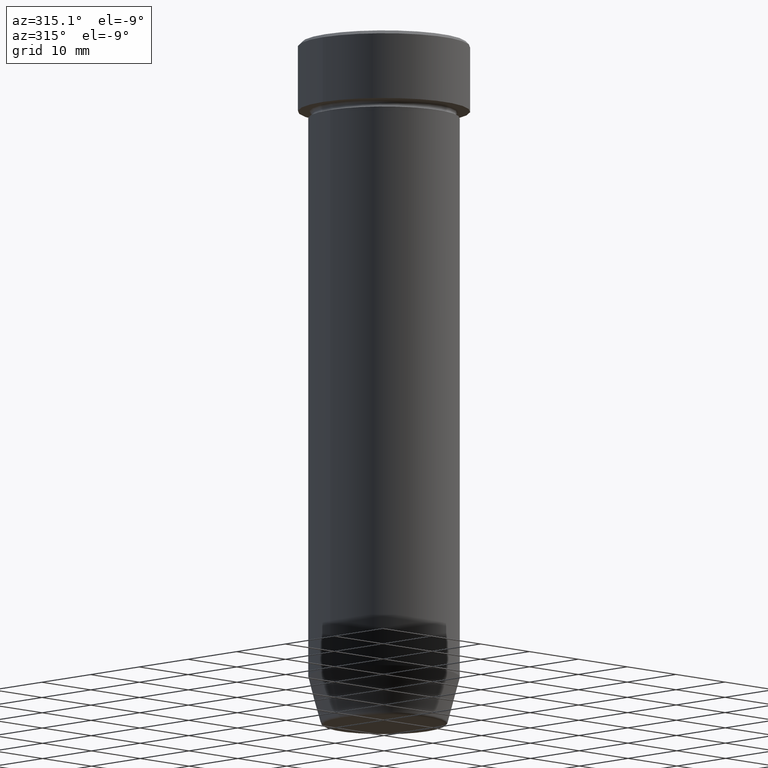
[diagram: clean part render]
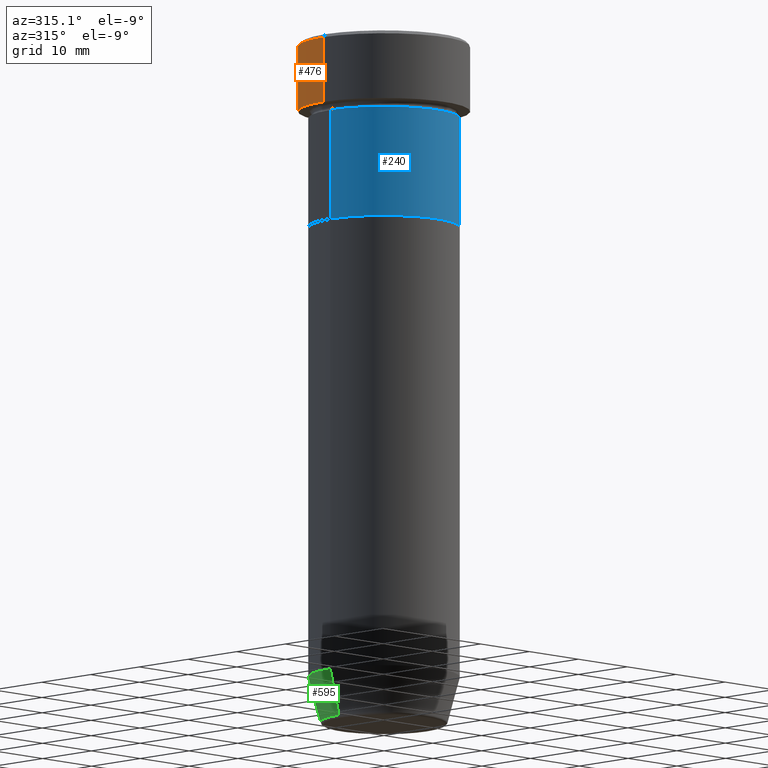
[diagram: same view with three faces highlighted in distinct colors, each labeled with its STEP entity id]
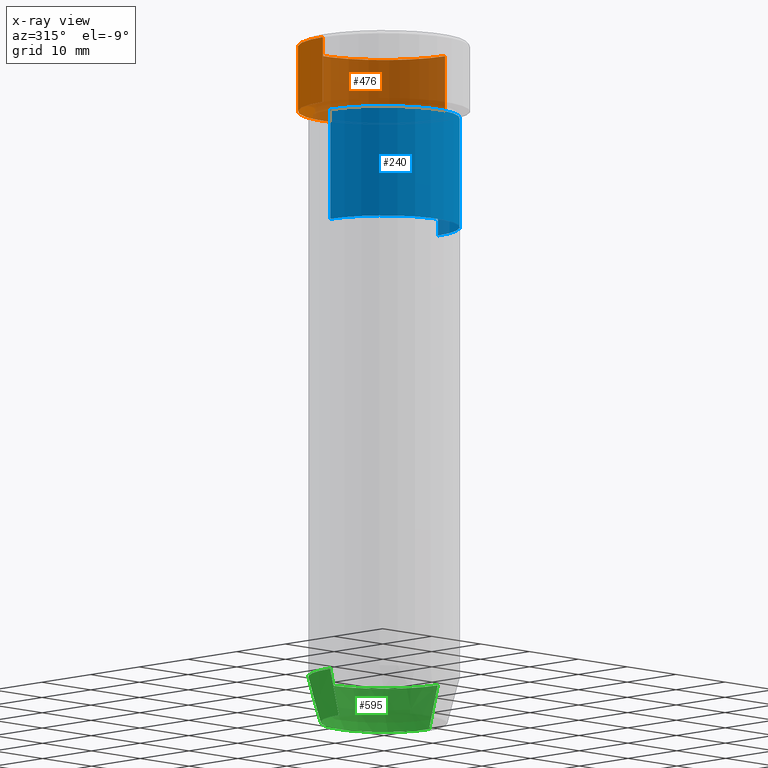
[diagram: x-ray of the same camera — body ghosted, the three highlighted faces saturated]
A machine part, auxiliary view with three faces highlighted in distinct colors.
The next image is the same camera in x-ray (body ghosted, the three faces saturated) — at least one of them is partly hidden behind the body in this view.
Their STEP definitions:

[orange] entity #476 — the highlighted cylindrical surface (partial cylindrical patch) has radius 12.5 mm, axis along (-0, -0, 1).
#1 = FACE_OUTER_BOUND ( 'NONE', #457, .T. ) ;
#3 = DIRECTION ( 'NONE',  ( -0.000000000000000000, -0.000000000000000000, 1.000000000000000000 ) ) ;
#11 = DIRECTION ( 'NONE',  ( 1.000000000000000000, 0.000000000000000000, 0.000000000000000000 ) ) ;
#21 = DIRECTION ( 'NONE',  ( 1.000000000000000000, 0.000000000000000000, 0.000000000000000000 ) ) ;
#60 = ORIENTED_EDGE ( 'NONE', *, *, #179, .T. ) ;
#80 = VERTEX_POINT ( 'NONE', #122 ) ;
#86 = ORIENTED_EDGE ( 'NONE', *, *, #362, .T. ) ;
#103 = AXIS2_PLACEMENT_3D ( 'NONE', #160, #163, #529 ) ;
#111 = EDGE_CURVE ( 'NONE', #80, #255, #145, .T. ) ;
#122 = CARTESIAN_POINT ( 'NONE',  ( 12.50000000000000000, 0.000000000000000000, -10.00000000000000000 ) ) ;
#129 = LINE ( 'NONE', #412, #371 ) ;
#145 = CIRCLE ( 'NONE', #103, 12.50000000000000000 ) ;
#155 = ORIENTED_EDGE ( 'NONE', *, *, #111, .T. ) ;
#160 = CARTESIAN_POINT ( 'NONE',  ( 0.000000000000000000, 0.000000000000000000, -10.00000000000000000 ) ) ;
#163 = DIRECTION ( 'NONE',  ( -0.000000000000000000, -0.000000000000000000, 1.000000000000000000 ) ) ;
#179 = EDGE_CURVE ( 'NONE', #211, #408, #596, .T. ) ;
#211 = VERTEX_POINT ( 'NONE', #443 ) ;
#224 = EDGE_CURVE ( 'NONE', #80, #408, #358, .T. ) ;
#255 = VERTEX_POINT ( 'NONE', #317 ) ;
#290 = AXIS2_PLACEMENT_3D ( 'NONE', #488, #440, #21 ) ;
#294 = CARTESIAN_POINT ( 'NONE',  ( 0.000000000000000000, 0.000000000000000000, 0.000000000000000000 ) ) ;
#296 = CARTESIAN_POINT ( 'NONE',  ( 12.50000000000000000, 0.000000000000000000, -0.4999999999999988343 ) ) ;
#317 = CARTESIAN_POINT ( 'NONE',  ( -12.50000000000000000, 1.530808498934191521E-15, -10.00000000000000000 ) ) ;
#358 = LINE ( 'NONE', #399, #458 ) ;
#362 = EDGE_CURVE ( 'NONE', #255, #211, #129, .T. ) ;
#371 = VECTOR ( 'NONE', #597, 1000.000000000000000 ) ;
#390 = AXIS2_PLACEMENT_3D ( 'NONE', #294, #3, #11 ) ;
#399 = CARTESIAN_POINT ( 'NONE',  ( 12.50000000000000000, 0.000000000000000000, 0.000000000000000000 ) ) ;
#408 = VERTEX_POINT ( 'NONE', #296 ) ;
#412 = CARTESIAN_POINT ( 'NONE',  ( -12.50000000000000000, 1.530808498934191521E-15, 0.000000000000000000 ) ) ;
#427 = CYLINDRICAL_SURFACE ( 'NONE', #390, 12.50000000000000000 ) ;
#440 = DIRECTION ( 'NONE',  ( 0.000000000000000000, 0.000000000000000000, -1.000000000000000000 ) ) ;
#443 = CARTESIAN_POINT ( 'NONE',  ( -12.50000000000000000, 1.530808498934191521E-15, -0.4999999999999988343 ) ) ;
#457 = EDGE_LOOP ( 'NONE', ( #155, #86, #60, #470 ) ) ;
#458 = VECTOR ( 'NONE', #577, 1000.000000000000000 ) ;
#470 = ORIENTED_EDGE ( 'NONE', *, *, #224, .F. ) ;
#476 = ADVANCED_FACE ( 'NONE', ( #1 ), #427, .T. ) ;
#488 = CARTESIAN_POINT ( 'NONE',  ( 0.000000000000000000, 0.000000000000000000, -0.4999999999999988343 ) ) ;
#529 = DIRECTION ( 'NONE',  ( 1.000000000000000000, 0.000000000000000000, 0.000000000000000000 ) ) ;
#577 = DIRECTION ( 'NONE',  ( -0.000000000000000000, -0.000000000000000000, 1.000000000000000000 ) ) ;
#596 = CIRCLE ( 'NONE', #290, 12.50000000000000000 ) ;
#597 = DIRECTION ( 'NONE',  ( -0.000000000000000000, -0.000000000000000000, 1.000000000000000000 ) ) ;

[blue] entity #240 — the highlighted cylindrical surface (partial cylindrical patch) has radius 11 mm, axis along (-0, -0, 1).
#18 = AXIS2_PLACEMENT_3D ( 'NONE', #364, #452, #372 ) ;
#42 = VERTEX_POINT ( 'NONE', #242 ) ;
#48 = CARTESIAN_POINT ( 'NONE',  ( 11.00000000000000000, 0.000000000000000000, -27.00000000000000000 ) ) ;
#49 = ORIENTED_EDGE ( 'NONE', *, *, #544, .T. ) ;
#77 = AXIS2_PLACEMENT_3D ( 'NONE', #277, #507, #409 ) ;
#93 = CIRCLE ( 'NONE', #509, 11.00000000000000000 ) ;
#131 = CARTESIAN_POINT ( 'NONE',  ( -11.00000000000000000, 1.347111479062088405E-15, 0.000000000000000000 ) ) ;
#143 = VECTOR ( 'NONE', #553, 1000.000000000000000 ) ;
#149 = CARTESIAN_POINT ( 'NONE',  ( 11.00000000000000000, 0.000000000000000000, -11.00000000000000000 ) ) ;
#180 = LINE ( 'NONE', #131, #536 ) ;
#190 = CARTESIAN_POINT ( 'NONE',  ( 11.00000000000000000, 0.000000000000000000, 0.000000000000000000 ) ) ;
#240 = ADVANCED_FACE ( 'NONE', ( #589 ), #273, .T. ) ;
#242 = CARTESIAN_POINT ( 'NONE',  ( -11.00000000000000000, 1.347111479062088405E-15, -27.00000000000000000 ) ) ;
#254 = LINE ( 'NONE', #190, #143 ) ;
#273 = CYLINDRICAL_SURFACE ( 'NONE', #18, 11.00000000000000000 ) ;
#274 = ORIENTED_EDGE ( 'NONE', *, *, #554, .F. ) ;
#277 = CARTESIAN_POINT ( 'NONE',  ( 0.000000000000000000, 0.000000000000000000, -27.00000000000000000 ) ) ;
#295 = ORIENTED_EDGE ( 'NONE', *, *, #370, .T. ) ;
#303 = DIRECTION ( 'NONE',  ( 1.000000000000000000, 0.000000000000000000, 0.000000000000000000 ) ) ;
#315 = VERTEX_POINT ( 'NONE', #48 ) ;
#321 = DIRECTION ( 'NONE',  ( -0.000000000000000000, -0.000000000000000000, 1.000000000000000000 ) ) ;
#348 = CARTESIAN_POINT ( 'NONE',  ( 0.000000000000000000, 0.000000000000000000, -11.00000000000000000 ) ) ;
#364 = CARTESIAN_POINT ( 'NONE',  ( 0.000000000000000000, 0.000000000000000000, 0.000000000000000000 ) ) ;
#370 = EDGE_CURVE ( 'NONE', #42, #315, #445, .T. ) ;
#372 = DIRECTION ( 'NONE',  ( 1.000000000000000000, 0.000000000000000000, 0.000000000000000000 ) ) ;
#379 = EDGE_CURVE ( 'NONE', #42, #477, #180, .T. ) ;
#388 = CARTESIAN_POINT ( 'NONE',  ( -11.00000000000000000, 1.347111479062088405E-15, -11.00000000000000000 ) ) ;
#393 = DIRECTION ( 'NONE',  ( -0.000000000000000000, -0.000000000000000000, 1.000000000000000000 ) ) ;
#409 = DIRECTION ( 'NONE',  ( 1.000000000000000000, 0.000000000000000000, 0.000000000000000000 ) ) ;
#413 = VERTEX_POINT ( 'NONE', #149 ) ;
#445 = CIRCLE ( 'NONE', #77, 11.00000000000000000 ) ;
#452 = DIRECTION ( 'NONE',  ( -0.000000000000000000, -0.000000000000000000, 1.000000000000000000 ) ) ;
#477 = VERTEX_POINT ( 'NONE', #388 ) ;
#482 = ORIENTED_EDGE ( 'NONE', *, *, #379, .F. ) ;
#507 = DIRECTION ( 'NONE',  ( -0.000000000000000000, -0.000000000000000000, 1.000000000000000000 ) ) ;
#509 = AXIS2_PLACEMENT_3D ( 'NONE', #348, #393, #303 ) ;
#536 = VECTOR ( 'NONE', #321, 1000.000000000000000 ) ;
#544 = EDGE_CURVE ( 'NONE', #315, #413, #254, .T. ) ;
#553 = DIRECTION ( 'NONE',  ( -0.000000000000000000, -0.000000000000000000, 1.000000000000000000 ) ) ;
#554 = EDGE_CURVE ( 'NONE', #477, #413, #93, .T. ) ;
#589 = FACE_OUTER_BOUND ( 'NONE', #599, .T. ) ;
#599 = EDGE_LOOP ( 'NONE', ( #482, #295, #49, #274 ) ) ;

[green] entity #595 — the highlighted conical surface has half-angle 15 deg.
#6 = VECTOR ( 'NONE', #65, 1000.000000000000000 ) ;
#9 = VERTEX_POINT ( 'NONE', #152 ) ;
#47 = VECTOR ( 'NONE', #146, 1000.000000000000000 ) ;
#65 = DIRECTION ( 'NONE',  ( 0.2588190451025217942, 0.000000000000000000, 0.9659258262890679791 ) ) ;
#137 = EDGE_CURVE ( 'NONE', #264, #9, #456, .T. ) ;
#142 = ORIENTED_EDGE ( 'NONE', *, *, #430, .T. ) ;
#146 = DIRECTION ( 'NONE',  ( -0.2588190451025217942, 3.169619151431777884E-17, 0.9659258262890679791 ) ) ;
#152 = CARTESIAN_POINT ( 'NONE',  ( -11.00000000000000000, 1.347111479062088405E-15, -92.99999999999998579 ) ) ;
#167 = CARTESIAN_POINT ( 'NONE',  ( 9.223655072137189492, 0.000000000000000000, -99.62940952255124216 ) ) ;
#170 = CARTESIAN_POINT ( 'NONE',  ( 11.00000000000000000, 0.000000000000000000, -92.99999999999998579 ) ) ;
#171 = CIRCLE ( 'NONE', #512, 9.223655072137189492 ) ;
#174 = FACE_OUTER_BOUND ( 'NONE', #233, .T. ) ;
#178 = ORIENTED_EDGE ( 'NONE', *, *, #540, .F. ) ;
#183 = ORIENTED_EDGE ( 'NONE', *, *, #191, .T. ) ;
#191 = EDGE_CURVE ( 'NONE', #226, #380, #171, .T. ) ;
#202 = CARTESIAN_POINT ( 'NONE',  ( 9.124355652982133691, 0.000000000000000000, -99.99999999999997158 ) ) ;
#208 = DIRECTION ( 'NONE',  ( 1.000000000000000000, 0.000000000000000000, 0.000000000000000000 ) ) ;
#226 = VERTEX_POINT ( 'NONE', #167 ) ;
#230 = DIRECTION ( 'NONE',  ( 1.000000000000000000, 0.000000000000000000, 0.000000000000000000 ) ) ;
#233 = EDGE_LOOP ( 'NONE', ( #183, #142, #355, #178 ) ) ;
#264 = VERTEX_POINT ( 'NONE', #170 ) ;
#334 = LINE ( 'NONE', #511, #47 ) ;
#355 = ORIENTED_EDGE ( 'NONE', *, *, #137, .F. ) ;
#365 = DIRECTION ( 'NONE',  ( -0.000000000000000000, -0.000000000000000000, 1.000000000000000000 ) ) ;
#380 = VERTEX_POINT ( 'NONE', #505 ) ;
#395 = DIRECTION ( 'NONE',  ( -0.000000000000000000, -0.000000000000000000, 1.000000000000000000 ) ) ;
#396 = CARTESIAN_POINT ( 'NONE',  ( 0.000000000000000000, 0.000000000000000000, -99.62940952255124216 ) ) ;
#430 = EDGE_CURVE ( 'NONE', #380, #9, #334, .T. ) ;
#431 = LINE ( 'NONE', #202, #6 ) ;
#456 = CIRCLE ( 'NONE', #487, 11.00000000000000000 ) ;
#464 = CARTESIAN_POINT ( 'NONE',  ( 0.000000000000000000, 0.000000000000000000, -99.99999999999997158 ) ) ;
#486 = CARTESIAN_POINT ( 'NONE',  ( 0.000000000000000000, 0.000000000000000000, -92.99999999999998579 ) ) ;
#487 = AXIS2_PLACEMENT_3D ( 'NONE', #486, #395, #208 ) ;
#505 = CARTESIAN_POINT ( 'NONE',  ( -9.223655072137189492, 1.238341722557647004E-15, -99.62940952255124216 ) ) ;
#511 = CARTESIAN_POINT ( 'NONE',  ( -9.124355652982133691, 1.117411294470662806E-15, -99.99999999999997158 ) ) ;
#512 = AXIS2_PLACEMENT_3D ( 'NONE', #396, #535, #574 ) ;
#535 = DIRECTION ( 'NONE',  ( -0.000000000000000000, -0.000000000000000000, 1.000000000000000000 ) ) ;
#540 = EDGE_CURVE ( 'NONE', #226, #264, #431, .T. ) ;
#556 = CONICAL_SURFACE ( 'NONE', #583, 9.124355652982133691, 0.2617993877991505181 ) ;
#574 = DIRECTION ( 'NONE',  ( -1.000000000000000000, 0.000000000000000000, 0.000000000000000000 ) ) ;
#583 = AXIS2_PLACEMENT_3D ( 'NONE', #464, #365, #230 ) ;
#595 = ADVANCED_FACE ( 'NONE', ( #174 ), #556, .T. ) ;